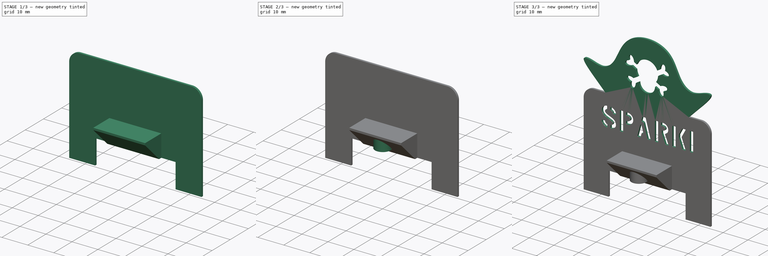
[diagram: build sequence overview — one tinted view per stage of 3, left to right]
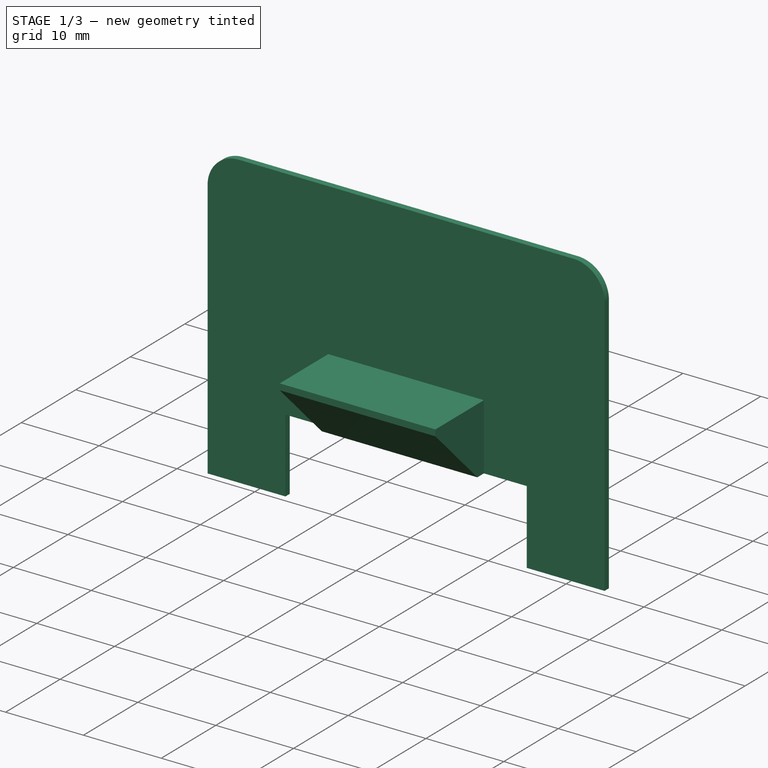
[diagram: stage 1 of 3 — iso view after this stage's code; geometry added in this stage tinted green]
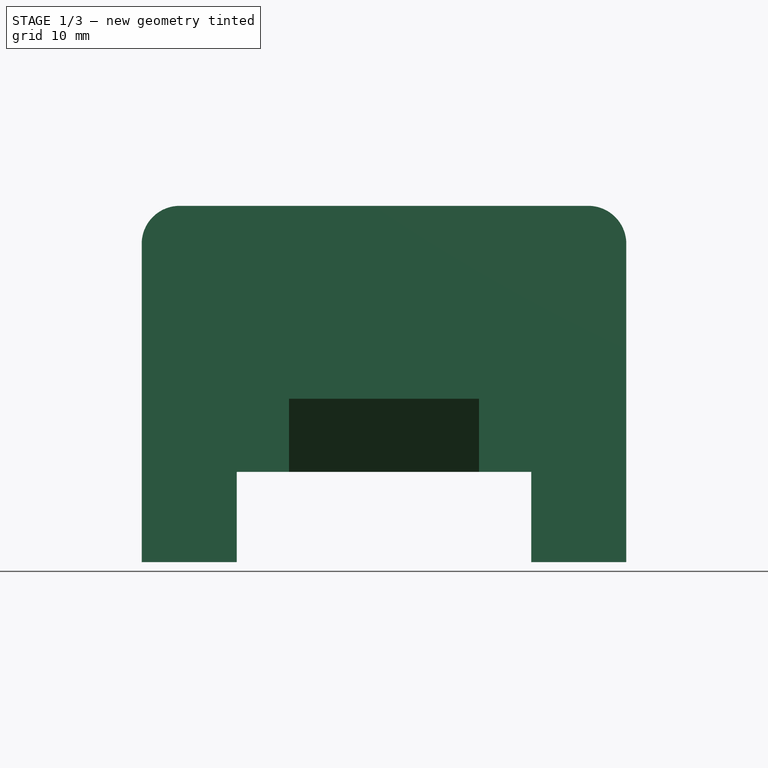
[diagram: stage 1 of 3 — front view after this stage's code; geometry added in this stage tinted green]
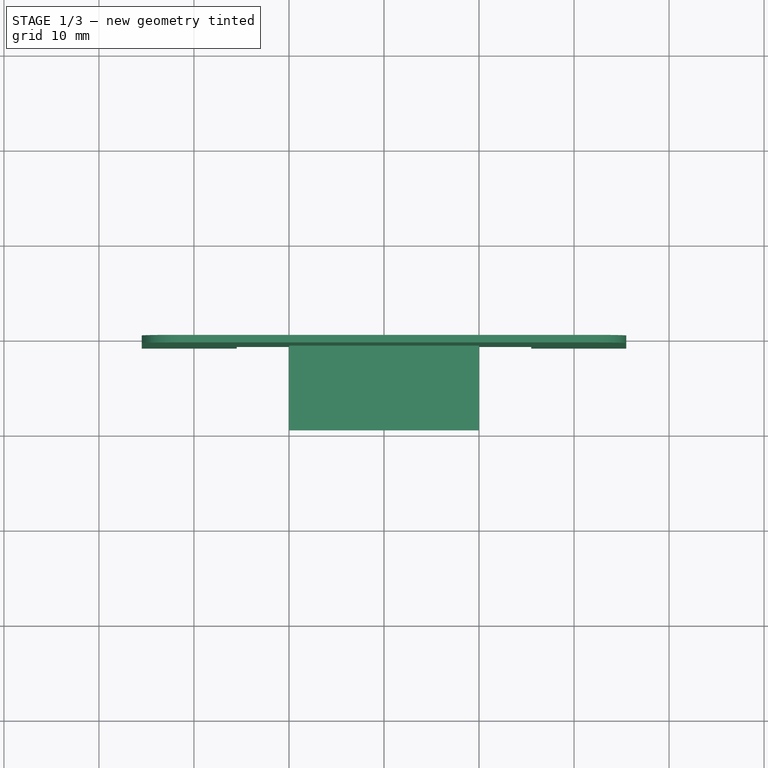
[diagram: stage 1 of 3 — top view after this stage's code; geometry added in this stage tinted green]
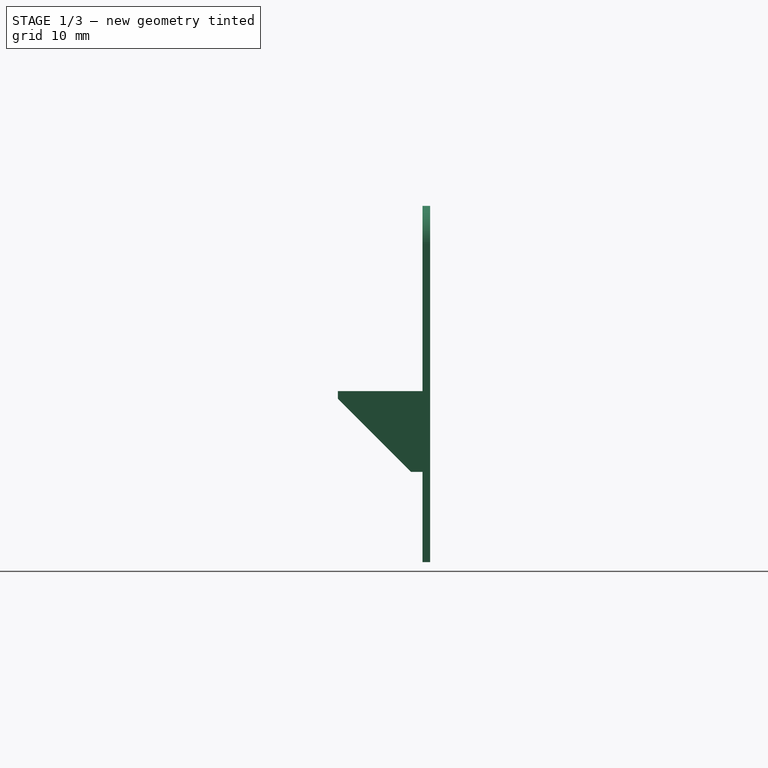
[diagram: stage 1 of 3 — right view after this stage's code; geometry added in this stage tinted green]
FCSTD DOCUMENT  (FreeCAD 0.19R24366 (Git))
Label: escornaface-pirata-Compactus
License: Creative Commons Attribution-ShareAlike
LicenseURL: http://creativecommons.org/licenses/by-sa/4.0/
objects: Sketcher::SketchObject×4, PartDesign::Pad×4, Part::Part2DObjectPython×1, PartDesign::Pocket×1, PartDesign::Body×1, App::Part×1
note: 16 computed .brp shape members not serialized (recipe doc carries the construction recipe); baked Part::Feature solids carry a one-line shape summary decoded from their .brp

FEATURE [Sketcher::SketchObject] Sketch  label="Sketch-base"
  FullyConstrained = true
  MapMode = 5
  Placement = pos=(0,0,0) rot=(1,0,0;1.5708rad)
  Support = -> [XZ_Plane002]
  sketch-geometry (10):
    g0: LineSegment StartX=-25.5 StartY=14.5 StartZ=0 EndX=-25.5 EndY=48 EndZ=0
    g1: ArcOfCircle CenterX=-21.5 CenterY=48 CenterZ=0 NormalX=0 NormalY=0 NormalZ=1 AngleXU=0 Radius=4 StartAngle=1.5708 EndAngle=3.14159
    g2: LineSegment StartX=-21.5 StartY=52 StartZ=0 EndX=21.5 EndY=52 EndZ=0
    g3: ArcOfCircle CenterX=21.5 CenterY=48 CenterZ=0 NormalX=0 NormalY=0 NormalZ=1 AngleXU=0 Radius=4 StartAngle=1e-16 EndAngle=1.5708
    g4: LineSegment StartX=25.5 StartY=48 StartZ=0 EndX=25.5 EndY=14.5 EndZ=0
    g5: LineSegment StartX=25.5 StartY=14.5 StartZ=0 EndX=15.5 EndY=14.5 EndZ=0
    g6: LineSegment StartX=15.5 StartY=14.5 StartZ=0 EndX=15.5 EndY=24 EndZ=0
    g7: LineSegment StartX=15.5 StartY=24 StartZ=0 EndX=-15.5 EndY=24 EndZ=0
    g8: LineSegment StartX=-15.5 StartY=24 StartZ=0 EndX=-15.5 EndY=14.5 EndZ=0
    g9: LineSegment StartX=-15.5 StartY=14.5 StartZ=0 EndX=-25.5 EndY=14.5 EndZ=0
  constraints (27):
    c: Vertical(g0)
    c: Tangent(g0,g1) = 1.5708
    c: Tangent(g1,g2) = 1.5708
    c: Tangent(g2,g3) = 1.5708
    c: Tangent(g3,g4) = 1.5708
    c: Coincident(g4,g5)
    c: Horizontal(g5)
    c: Coincident(g5,g6)
    c: Vertical(g6)
    c: Coincident(g6,g7)
    c: Horizontal(g7)
    c: Coincident(g7,g8)
    c: Vertical(g8)
    c: Coincident(g8,g9)
    c: Coincident(g9,g0)
    c: Horizontal(g9)
    c: Equal(g9,g5)
    c: Vertical(g4)
    c: Horizontal(g2)
    c: Symmetric(g8,g5,g-2)
    c: Equal(g1,g3)
    c: DistanceX(g0,g3) = 51
    c: DistanceY(g4,g2) = 37.5
    c: DistanceX(g5,g5) = 10
    c: DistanceY(g6,g6) = 9.5
    c: DistanceY(g5) = 14.5
    c: Radius(g1) = 4
FEATURE [PartDesign::Pad] Pad  label="Pad-base"
  Direction = (1,1,1)
  Length = 0.8
  Length2 = 100
  Placement = pos=(0,0,0) rot=(1,0,0;1.5708rad)
  Profile = -> Sketch
  Type = 0
FEATURE [Sketcher::SketchObject] Sketch001  label="Sketch-support"
  FullyConstrained = true
  MapMode = 5
  Placement = pos=(0,0,0) rot=(0.57735,0.57735,0.57735;2.0944rad)
  Support = -> [YZ_Plane002]
  sketch-geometry (5):
    g0: LineSegment StartX=-2 StartY=24 StartZ=0 EndX=-9.7 EndY=31.7 EndZ=0
    g1: LineSegment StartX=-9.7 StartY=32.5 StartZ=0 EndX=0 EndY=32.5 EndZ=0
    g2: LineSegment StartX=0 StartY=32.5 StartZ=0 EndX=0 EndY=24 EndZ=0
    g3: LineSegment StartX=-2 StartY=24 StartZ=0 EndX=0 EndY=24 EndZ=0
    g4: LineSegment StartX=-9.7 StartY=31.7 StartZ=0 EndX=-9.7 EndY=32.5 EndZ=0
  constraints (15):
    c: Horizontal(g1)
    c: Coincident(g1,g2)
    c: Vertical(g2)
    c: Angle(g2,g0) = 0.785398
    c: Horizontal(g3)
    c: Coincident(g0,g3)
    c: Coincident(g2,g3)
    c: DistanceY(g2,g2) = 8.5
    c: PointOnObject(g2,g-2)
    c: Vertical(g4)
    c: Coincident(g1,g4)
    c: Coincident(g0,g4)
    c: DistanceX(g3,g3) = 2
    c: DistanceY(g4,g4) = 0.8
    c: DistanceY(g2) = 24
FEATURE [PartDesign::Pad] Pad001  label="Pad-support"
  BaseFeature = -> Pad
  Direction = (1,1,1)
  Length = 20
  Length2 = 100
  Midplane = true
  Placement = pos=(0,0,0) rot=(1,0,0;1.5708rad)
  Profile = -> Sketch001
  Refine = true
  Type = 0
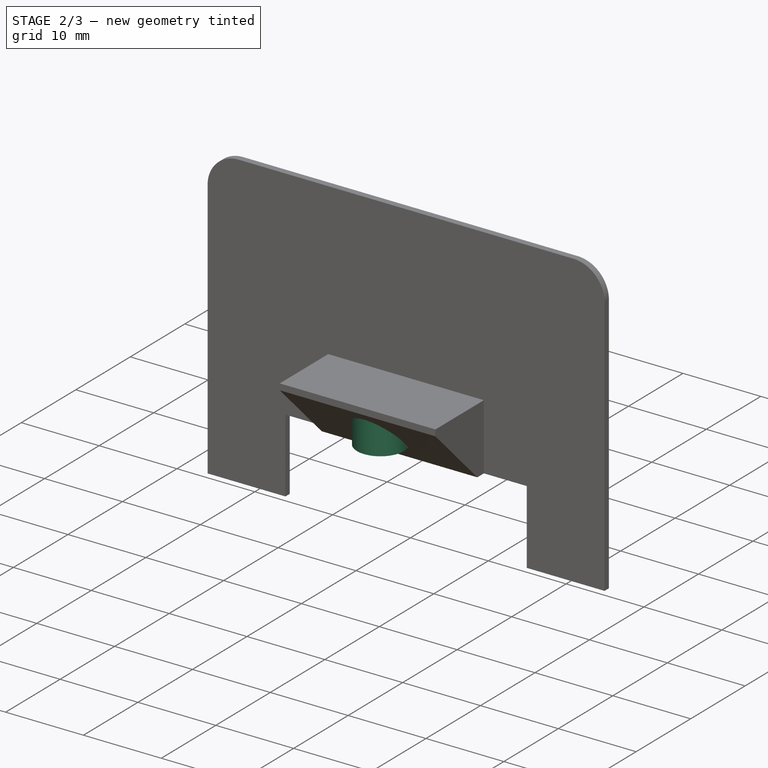
[diagram: stage 2 of 3 — iso view after this stage's code; geometry added in this stage tinted green]
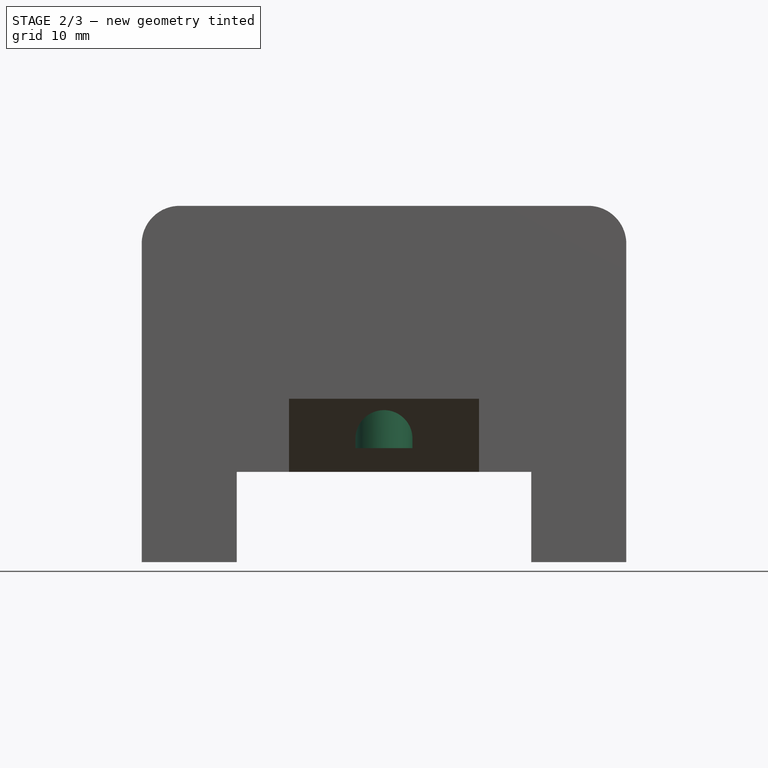
[diagram: stage 2 of 3 — front view after this stage's code; geometry added in this stage tinted green]
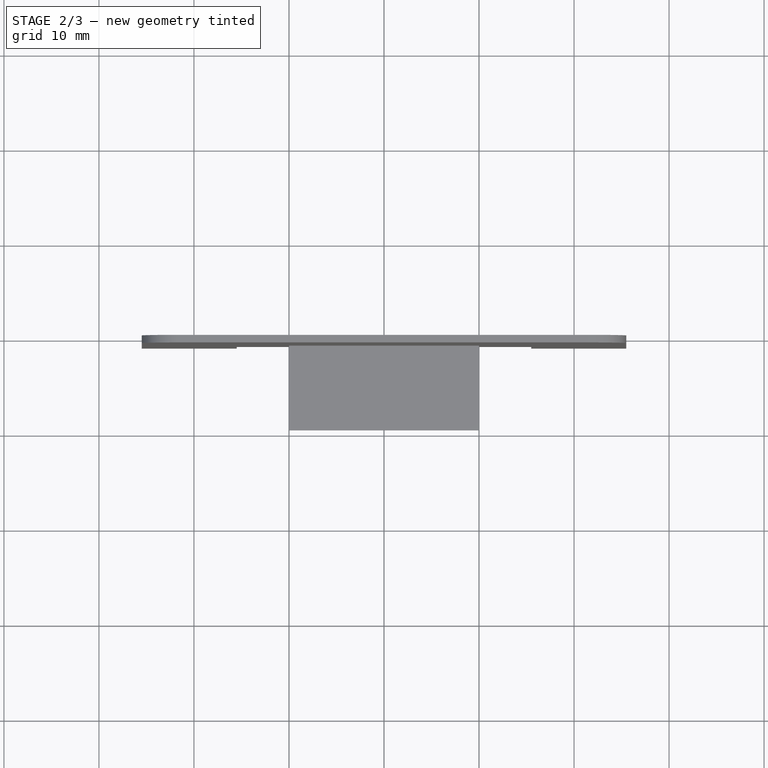
[diagram: stage 2 of 3 — top view after this stage's code; geometry added in this stage tinted green]
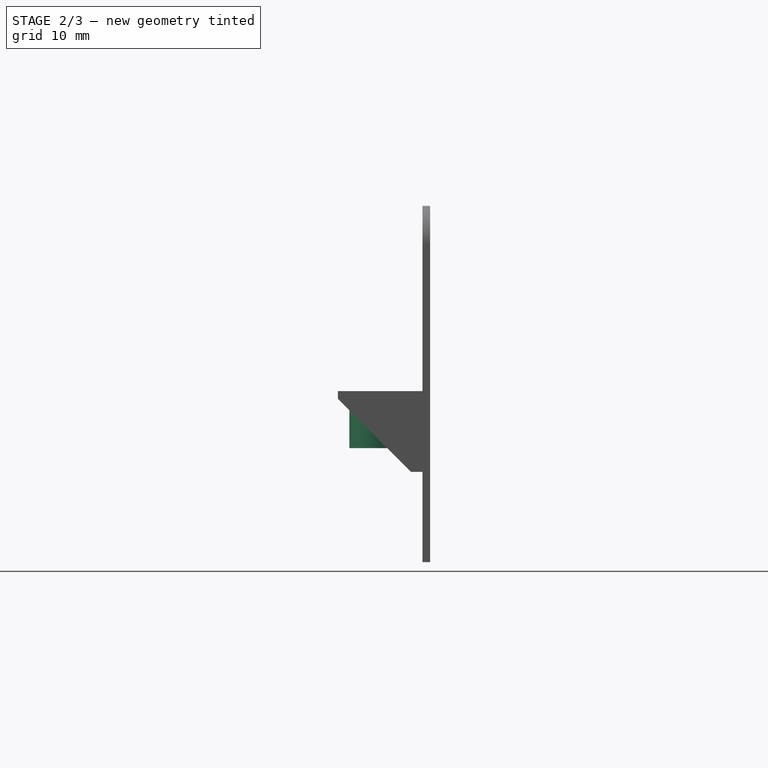
[diagram: stage 2 of 3 — right view after this stage's code; geometry added in this stage tinted green]
FEATURE [Part::Part2DObjectPython] ShapeString  label="ShapeString-name"  # Draft 2D object (typed FeaturePython)
  AttachmentOffset = pos=(-20,41,0) rot=(0,0,1;0rad)
  FontFile = escornaface.otf
  Placement = pos=(-19.0183,-1,39.5) rot=(1,0,0;1.5708rad)
  Size = 4
  String = sparki
  Tracking = 0
  expr: .Placement.Base.x = .Shape.BoundBox.XLength / -2 - 0.65
FEATURE [Sketcher::SketchObject] Sketch003  label="Sketch-hook"
  FullyConstrained = true
  MapMode = 5
  Placement = pos=(-9e-15,7.2e-15,32.5) rot=(0,0,1;3.14159rad)
  Support = -> [Pad001]
  sketch-geometry (1):
    g0: Circle CenterX=0 CenterY=5.5 CenterZ=0 NormalX=0 NormalY=0 NormalZ=1 AngleXU=0 Radius=3
  constraints (3):
    c: Radius(g0) = 3
    c: DistanceY(g0) = 5.5
    c: PointOnObject(g0,g-2)
FEATURE [PartDesign::Pad] Pad002  label="Pad-hook"
  BaseFeature = -> Pad001
  Direction = (1,1,1)
  Length = 6
  Length2 = 100
  Placement = pos=(0,0,0) rot=(1,0,0;1.5708rad)
  Profile = -> Sketch003
  Refine = true
  Reversed = true
  Type = 0
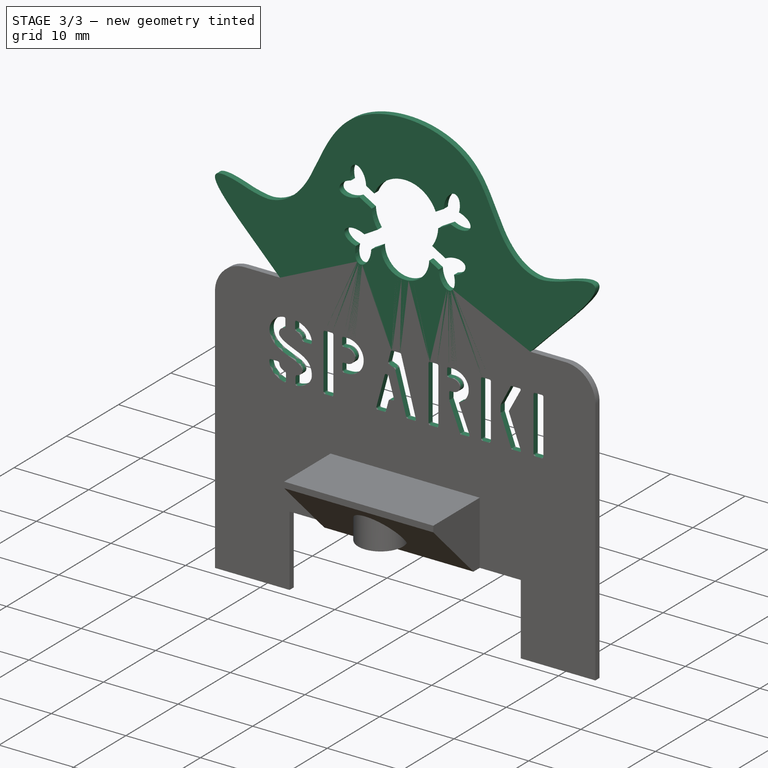
[diagram: stage 3 of 3 — iso view after this stage's code; geometry added in this stage tinted green]
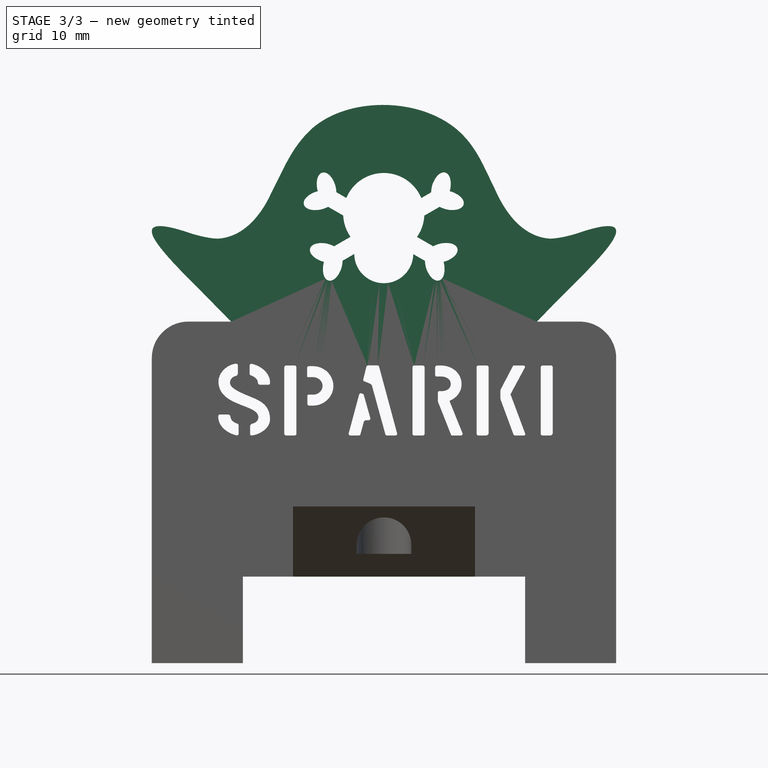
[diagram: stage 3 of 3 — front view after this stage's code; geometry added in this stage tinted green]
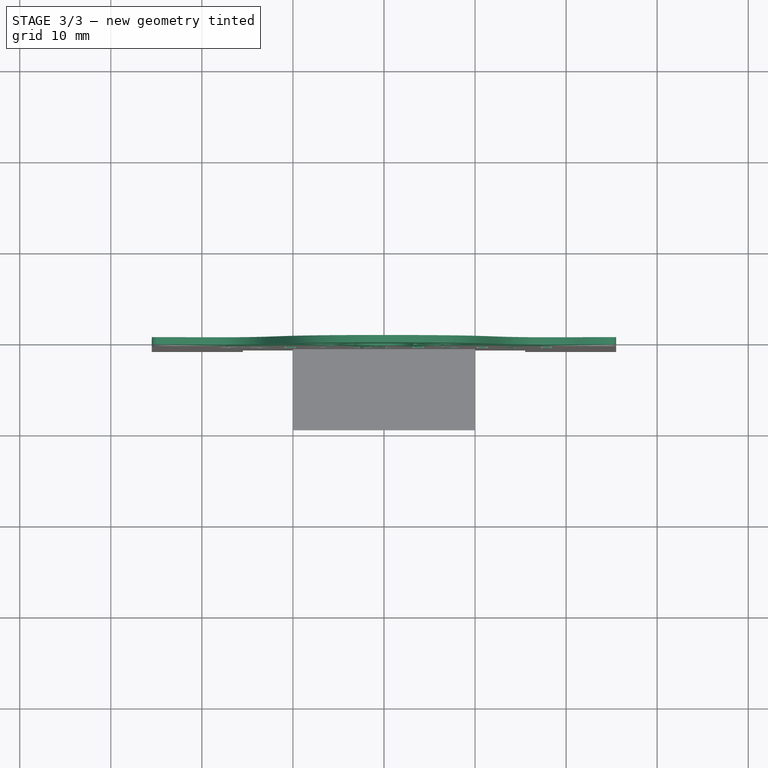
[diagram: stage 3 of 3 — top view after this stage's code; geometry added in this stage tinted green]
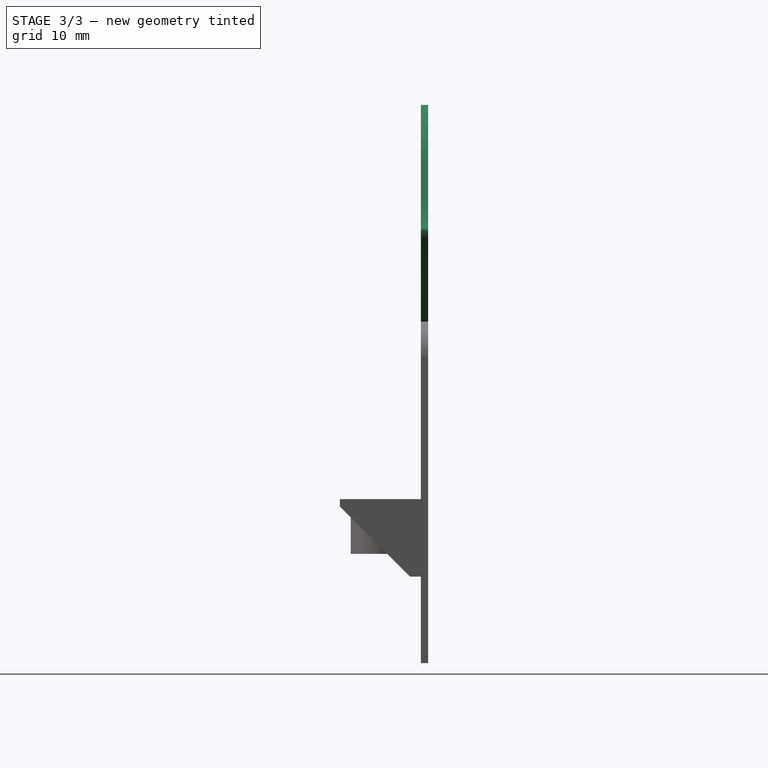
[diagram: stage 3 of 3 — right view after this stage's code; geometry added in this stage tinted green]
FEATURE [PartDesign::Pocket] Pocket  label="Pocket-name"
  BaseFeature = -> Pad002
  Length = 5
  Length2 = 100
  Placement = pos=(0,0,0) rot=(1,0,0;1.5708rad)
  Profile = -> ShapeString
  Type = 0
FEATURE [Sketcher::SketchObject] Sketch005  label="Sketch-hat"
  AttachmentOffset = pos=(0,-43.8,0) rot=(0,0,1;0rad)
  FullyConstrained = false
  MapMode = 5
  Placement = pos=(0,-9.7e-15,43.8) rot=(-1,0,0;1.5708rad)
  Support = -> [Pocket]
  sketch-geometry (62):
    g0: BSplineCurve PolesCount=4 KnotsCount=2 Degree=3 IsPeriodic=0
    g1: BSplineCurve PolesCount=4 KnotsCount=2 Degree=3 IsPeriodic=0
    g2: BSplineCurve PolesCount=2 KnotsCount=2 Degree=1 IsPeriodic=0
    g3: BSplineCurve PolesCount=4 KnotsCount=2 Degree=3 IsPeriodic=0
    g4: BSplineCurve PolesCount=4 KnotsCount=2 Degree=3 IsPeriodic=0
    g5: BSplineCurve PolesCount=2 KnotsCount=2 Degree=1 IsPeriodic=0
    g6: BSplineCurve PolesCount=4 KnotsCount=2 Degree=3 IsPeriodic=0
    g7: BSplineCurve PolesCount=4 KnotsCount=2 Degree=3 IsPeriodic=0
    g8: BSplineCurve PolesCount=4 KnotsCount=2 Degree=3 IsPeriodic=0
    g9: BSplineCurve PolesCount=4 KnotsCount=2 Degree=3 IsPeriodic=0
    g10: BSplineCurve PolesCount=4 KnotsCount=2 Degree=3 IsPeriodic=0
    g11: BSplineCurve PolesCount=4 KnotsCount=2 Degree=3 IsPeriodic=0
    g12: BSplineCurve PolesCount=4 KnotsCount=2 Degree=3 IsPeriodic=0
    g13: BSplineCurve PolesCount=4 KnotsCount=2 Degree=3 IsPeriodic=0
    g14: BSplineCurve PolesCount=4 KnotsCount=2 Degree=3 IsPeriodic=0
    g15: BSplineCurve PolesCount=2 KnotsCount=2 Degree=1 IsPeriodic=0
    g16: BSplineCurve PolesCount=4 KnotsCount=2 Degree=3 IsPeriodic=0
    g17: BSplineCurve PolesCount=2 KnotsCount=2 Degree=1 IsPeriodic=0
    g18: BSplineCurve PolesCount=4 KnotsCount=2 Degree=3 IsPeriodic=0
    g19: BSplineCurve PolesCount=4 KnotsCount=2 Degree=3 IsPeriodic=0
    g20: BSplineCurve PolesCount=4 KnotsCount=2 Degree=3 IsPeriodic=0
    g21: BSplineCurve PolesCount=4 KnotsCount=2 Degree=3 IsPeriodic=0
    g22: BSplineCurve PolesCount=4 KnotsCount=2 Degree=3 IsPeriodic=0
    g23: BSplineCurve PolesCount=4 KnotsCount=2 Degree=3 IsPeriodic=0
    g24: BSplineCurve PolesCount=4 KnotsCount=2 Degree=3 IsPeriodic=0
    g25: BSplineCurve PolesCount=4 KnotsCount=2 Degree=3 IsPeriodic=0
    g26: BSplineCurve PolesCount=2 KnotsCount=2 Degree=1 IsPeriodic=0
    g27: BSplineCurve PolesCount=4 KnotsCount=2 Degree=3 IsPeriodic=0
    g28: BSplineCurve PolesCount=4 KnotsCount=2 Degree=3 IsPeriodic=0
    g29: BSplineCurve PolesCount=2 KnotsCount=2 Degree=1 IsPeriodic=0
    g30: BSplineCurve PolesCount=4 KnotsCount=2 Degree=3 IsPeriodic=0
    g31: BSplineCurve PolesCount=4 KnotsCount=2 Degree=3 IsPeriodic=0
    g32: BSplineCurve PolesCount=4 KnotsCount=2 Degree=3 IsPeriodic=0
    g33: BSplineCurve PolesCount=4 KnotsCount=2 Degree=3 IsPeriodic=0
    g34: BSplineCurve PolesCount=4 KnotsCount=2 Degree=3 IsPeriodic=0
    g35: BSplineCurve PolesCount=4 KnotsCount=2 Degree=3 IsPeriodic=0
    g36: BSplineCurve PolesCount=4 KnotsCount=2 Degree=3 IsPeriodic=0
    g37: BSplineCurve PolesCount=4 KnotsCount=2 Degree=3 IsPeriodic=0
    g38: BSplineCurve PolesCount=2 KnotsCount=2 Degree=1 IsPeriodic=0
    g39: BSplineCurve PolesCount=4 KnotsCount=2 Degree=3 IsPeriodic=0
    g40: BSplineCurve PolesCount=2 KnotsCount=2 Degree=1 IsPeriodic=0
    g41: BSplineCurve PolesCount=4 KnotsCount=2 Degree=3 IsPeriodic=0
    g42: BSplineCurve PolesCount=4 KnotsCount=2 Degree=3 IsPeriodic=0
    g43: BSplineCurve PolesCount=4 KnotsCount=2 Degree=3 IsPeriodic=0
    g44: BSplineCurve PolesCount=4 KnotsCount=2 Degree=3 IsPeriodic=0
    g45: BSplineCurve PolesCount=4 KnotsCount=2 Degree=3 IsPeriodic=0
    g46: BSplineCurve PolesCount=4 KnotsCount=2 Degree=3 IsPeriodic=0
    g47: BSplineCurve PolesCount=4 KnotsCount=2 Degree=3 IsPeriodic=0
    g48: BSplineCurve PolesCount=4 KnotsCount=2 Degree=3 IsPeriodic=0
    g49: BSplineCurve PolesCount=2 KnotsCount=2 Degree=1 IsPeriodic=0
    g50: BSplineCurve PolesCount=4 KnotsCount=2 Degree=3 IsPeriodic=0
    g51: BSplineCurve PolesCount=4 KnotsCount=2 Degree=3 IsPeriodic=0
    g52: BSplineCurve PolesCount=4 KnotsCount=2 Degree=3 IsPeriodic=0
    g53: BSplineCurve PolesCount=4 KnotsCount=2 Degree=3 IsPeriodic=0
    g54: BSplineCurve PolesCount=4 KnotsCount=2 Degree=3 IsPeriodic=0
    g55: BSplineCurve PolesCount=4 KnotsCount=2 Degree=3 IsPeriodic=0
    g56: BSplineCurve PolesCount=2 KnotsCount=2 Degree=1 IsPeriodic=0
    g57: BSplineCurve PolesCount=4 KnotsCount=2 Degree=3 IsPeriodic=0
    g58: BSplineCurve PolesCount=4 KnotsCount=2 Degree=3 IsPeriodic=0
    g59: BSplineCurve PolesCount=4 KnotsCount=2 Degree=3 IsPeriodic=0
    g60: BSplineCurve PolesCount=4 KnotsCount=2 Degree=3 IsPeriodic=0
    g61: BSplineCurve PolesCount=4 KnotsCount=2 Degree=3 IsPeriodic=0
  constraints (62):
    c: Coincident(g0,g1)
    c: Coincident(g1,g2)
    c: Coincident(g2,g3)
    c: Coincident(g3,g4)
    c: Coincident(g4,g5)
    c: Coincident(g5,g6)
    c: Coincident(g6,g7)
    c: Coincident(g7,g8)
    c: Coincident(g8,g9)
    c: Coincident(g9,g10)
    c: Coincident(g10,g11)
    c: Coincident(g11,g12)
    c: Coincident(g12,g13)
    c: Coincident(g13,g14)
    c: Coincident(g14,g15)
    c: Coincident(g15,g16)
    c: Coincident(g16,g17)
    c: Coincident(g17,g18)
    c: Coincident(g18,g19)
    c: Coincident(g19,g20)
    c: Coincident(g20,g21)
    c: Coincident(g21,g22)
    c: Coincident(g22,g23)
    c: Coincident(g23,g24)
    c: Coincident(g24,g25)
    c: Coincident(g25,g26)
    c: Coincident(g26,g27)
    c: Coincident(g27,g28)
    c: Coincident(g28,g29)
    c: Coincident(g29,g30)
    c: Coincident(g30,g31)
    c: Coincident(g31,g32)
    c: Coincident(g32,g33)
    c: Coincident(g33,g34)
    c: Coincident(g34,g35)
    c: Coincident(g35,g36)
    c: Coincident(g36,g37)
    c: Coincident(g37,g38)
    c: Coincident(g38,g39)
    c: Coincident(g39,g40)
    c: Coincident(g40,g41)
    c: Coincident(g41,g42)
    c: Coincident(g42,g43)
    c: Coincident(g43,g44)
    c: Coincident(g44,g45)
    c: Coincident(g45,g46)
    c: Coincident(g46,g47)
    c: Coincident(g47,g48)
    c: Coincident(g48,g49)
    c: Coincident(g49,g0)
    c: Coincident(g50,g51)
    c: Coincident(g51,g52)
    c: Coincident(g52,g53)
    c: Coincident(g53,g54)
    c: Coincident(g54,g55)
    c: Coincident(g55,g56)
    c: Coincident(g56,g57)
    c: Coincident(g57,g58)
    c: Coincident(g58,g59)
    c: Coincident(g59,g60)
    c: Coincident(g60,g61)
    c: Coincident(g61,g50)
FEATURE [PartDesign::Pad] Pad003  label="Pad-hat"
  BaseFeature = -> Pocket
  Direction = (1,1,1)
  Length = 0.8
  Length2 = 100
  Placement = pos=(0,0,0) rot=(1,0,0;1.5708rad)
  Profile = -> Sketch005
  Refine = true
  Reversed = true
  Type = 0
FEATURE [PartDesign::Body] Body  label="Body-escornaface"
  Group = -> [Sketch,Pad,Sketch001,Pad001,Sketch003,Pad002,ShapeString,Pocket,Sketch005,Pad003]
  Origin = -> Origin002
  Tip = -> Pad003
FEATURE [App::Part] Part  label="Part-escornaface"
  Group = -> [Body]
  Origin = -> Origin001
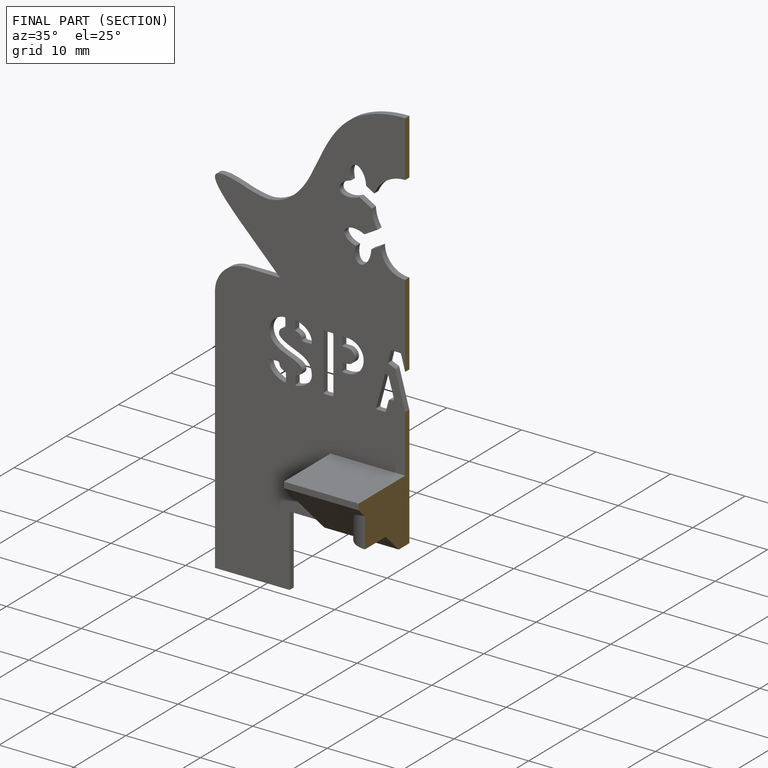
[diagram: finished part — half-section view (interior)]
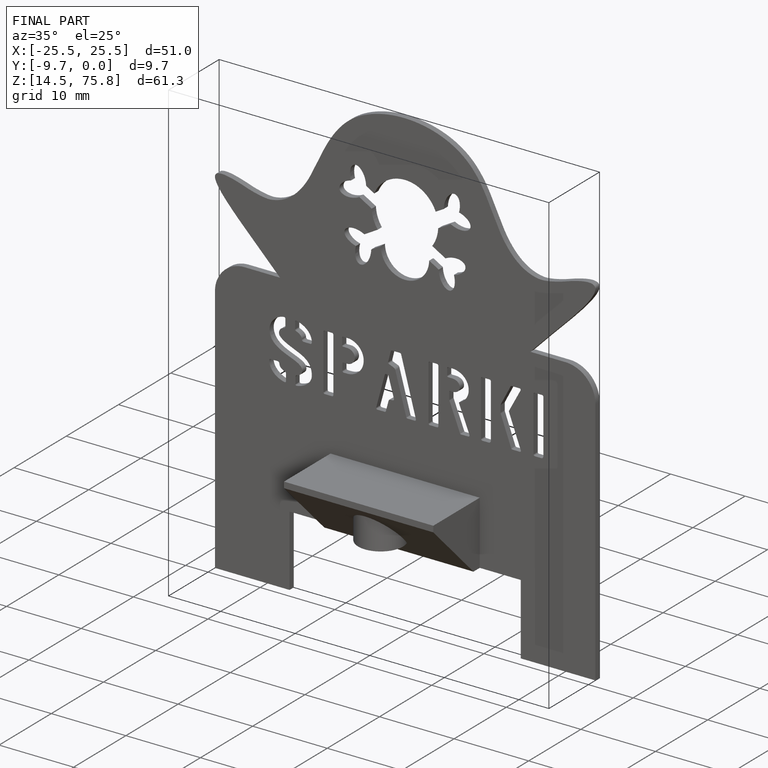
[diagram: finished part — iso view with bounding-box wireframe]
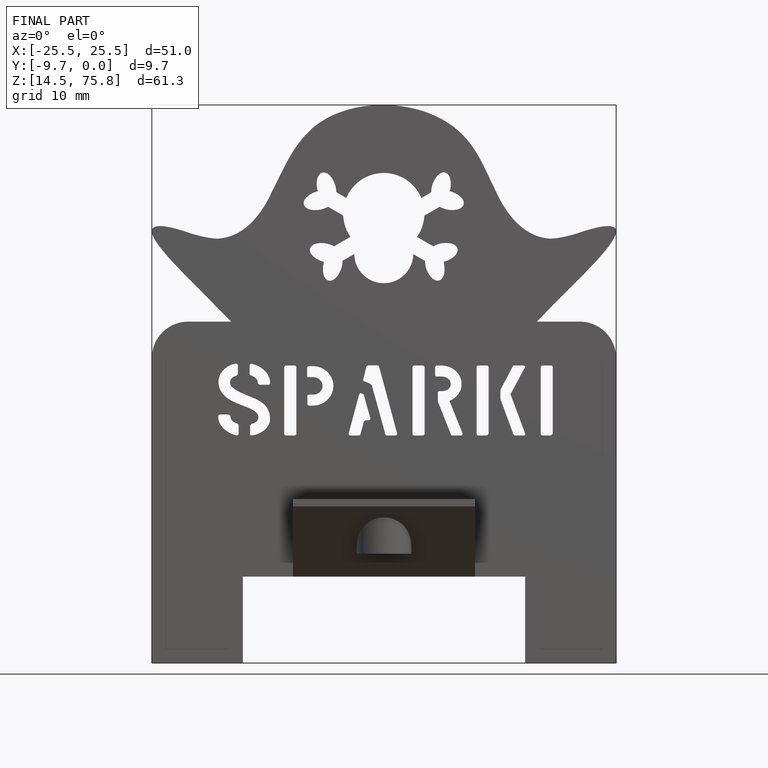
[diagram: finished part — front view with bounding-box wireframe]
